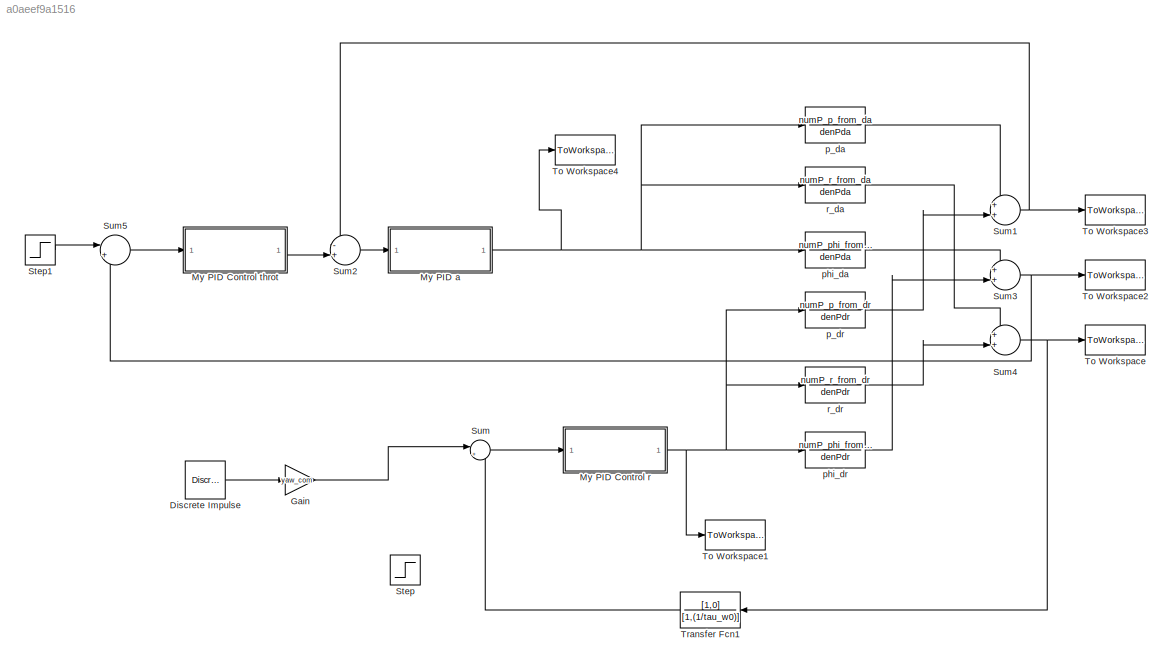
MODEL slx_a0aeef9a1516
KIND model
CONFIG AbsTol = auto
CONFIG FixedStep = auto
CONFIG MaxStep = auto
CONFIG MinStep = auto
CONFIG RelTol = 1e-3
CONFIG SampleTimeConstraint = Unconstrained
CONFIG Solver = ode45
CONFIG SolverMode = Auto
CONFIG SolverName = ode45
CONFIG StartTime = 0.0
CONFIG StopTime = 10.0
BLOCK [Reference] Discrete Impulse  REF=dspsrcs4/Discrete 
Impulse
  Ports = [0, 1]
  SourceBlock = dspsrcs4/Discrete \nImpulse
  SourceType = Discrete Impulse
BLOCK [Gain] Gain
  Gain = yaw_com
  OutDataTypeStr = Inherit: Inherit via internal rule
  ParamDataTypeStr = Inherit: Inherit via internal rule
  SaturateOnIntegerOverflow = off
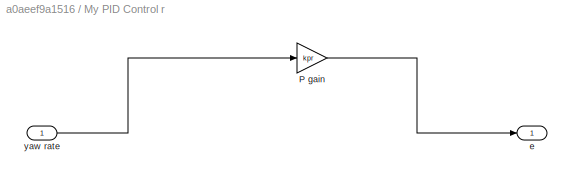
BLOCK [SubSystem] My PID Control r
  Ports = [1, 1]
  RequestExecContextInheritance = off
  TreatAsAtomicUnit = on
  Variant = off
BLOCK [Gain] My PID Control r/P gain
  Gain = kpr
  OutDataTypeStr = Inherit: Inherit via internal rule
  ParamDataTypeStr = Inherit: Inherit via internal rule
  SaturateOnIntegerOverflow = off
BLOCK [Outport] My PID Control r/e
  IconDisplay = Port number
BLOCK [Inport] My PID Control r/yaw rate
  IconDisplay = Port number
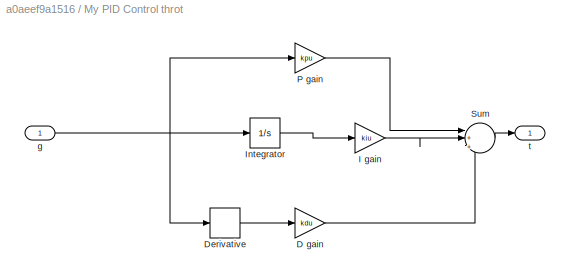
BLOCK [SubSystem] My PID Control throt
  Ports = [1, 1]
  RequestExecContextInheritance = off
  TreatAsAtomicUnit = on
  Variant = off
BLOCK [Gain] My PID Control throt/D gain
  Gain = kdu
  OutDataTypeStr = Inherit: Inherit via internal rule
  ParamDataTypeStr = Inherit: Inherit via internal rule
  SaturateOnIntegerOverflow = off
BLOCK [Derivative] My PID Control throt/Derivative
BLOCK [Gain] My PID Control throt/I gain
  Gain = kiu
  OutDataTypeStr = Inherit: Inherit via internal rule
  ParamDataTypeStr = Inherit: Inherit via internal rule
  SaturateOnIntegerOverflow = off
BLOCK [Integrator] My PID Control throt/Integrator
  Ports = [1, 1]
BLOCK [Gain] My PID Control throt/P gain
  Gain = kpu
  OutDataTypeStr = Inherit: Inherit via internal rule
  ParamDataTypeStr = Inherit: Inherit via internal rule
  SaturateOnIntegerOverflow = off
BLOCK [Sum] My PID Control throt/Sum
  IconShape = round
  InputSameDT = off
  Inputs = |+|+|+
  OutDataTypeStr = Inherit: Inherit via internal rule
  Ports = [3, 1]
  SaturateOnIntegerOverflow = off
BLOCK [Inport] My PID Control throt/g
  IconDisplay = Port number
BLOCK [Outport] My PID Control throt/t
  IconDisplay = Port number
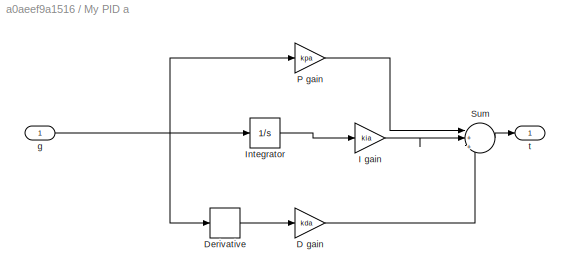
BLOCK [SubSystem] My PID a
  Ports = [1, 1]
  RequestExecContextInheritance = off
  TreatAsAtomicUnit = on
  Variant = off
BLOCK [Gain] My PID a/D gain
  Gain = kda
  OutDataTypeStr = Inherit: Inherit via internal rule
  ParamDataTypeStr = Inherit: Inherit via internal rule
  SaturateOnIntegerOverflow = off
BLOCK [Derivative] My PID a/Derivative
BLOCK [Gain] My PID a/I gain
  Gain = kia
  OutDataTypeStr = Inherit: Inherit via internal rule
  ParamDataTypeStr = Inherit: Inherit via internal rule
  SaturateOnIntegerOverflow = off
BLOCK [Integrator] My PID a/Integrator
  Ports = [1, 1]
BLOCK [Gain] My PID a/P gain
  Gain = kpa
  OutDataTypeStr = Inherit: Inherit via internal rule
  ParamDataTypeStr = Inherit: Inherit via internal rule
  SaturateOnIntegerOverflow = off
BLOCK [Sum] My PID a/Sum
  IconShape = round
  InputSameDT = off
  Inputs = |+|+|+
  OutDataTypeStr = Inherit: Inherit via internal rule
  Ports = [3, 1]
  SaturateOnIntegerOverflow = off
BLOCK [Inport] My PID a/g
  IconDisplay = Port number
BLOCK [Outport] My PID a/t
  IconDisplay = Port number
BLOCK [Step] Step
  After = 0
  SampleTime = 0
  Time = 0
BLOCK [Step] Step1
  After = phi_com
  SampleTime = 0
  Time = 0
BLOCK [Sum] Sum
  IconShape = round
  InputSameDT = off
  Inputs = |+-
  OutDataTypeStr = Inherit: Inherit via internal rule
  Ports = [2, 1]
  SaturateOnIntegerOverflow = off
BLOCK [Sum] Sum1
  IconShape = round
  InputSameDT = off
  Inputs = ++|
  OutDataTypeStr = Inherit: Inherit via internal rule
  Ports = [2, 1]
  SaturateOnIntegerOverflow = off
BLOCK [Sum] Sum2
  IconShape = round
  InputSameDT = off
  Inputs = -+|
  OutDataTypeStr = Inherit: Inherit via internal rule
  Ports = [2, 1]
  SaturateOnIntegerOverflow = off
BLOCK [Sum] Sum3
  IconShape = round
  InputSameDT = off
  Inputs = ++|
  OutDataTypeStr = Inherit: Inherit via internal rule
  Ports = [2, 1]
  SaturateOnIntegerOverflow = off
BLOCK [Sum] Sum4
  IconShape = round
  InputSameDT = off
  Inputs = ++|
  OutDataTypeStr = Inherit: Inherit via internal rule
  Ports = [2, 1]
  SaturateOnIntegerOverflow = off
BLOCK [Sum] Sum5
  IconShape = round
  InputSameDT = off
  Inputs = |+-
  OutDataTypeStr = Inherit: Inherit via internal rule
  Ports = [2, 1]
  SaturateOnIntegerOverflow = off
BLOCK [ToWorkspace] To Workspace
  MaxDataPoints = inf
  Ports = [1]
  SampleTime = -1
  SaveFormat = Timeseries
  VariableName = yaw_rate
BLOCK [ToWorkspace] To Workspace1
  MaxDataPoints = inf
  Ports = [1]
  SampleTime = -1
  SaveFormat = Timeseries
  VariableName = rudder
BLOCK [ToWorkspace] To Workspace2
  MaxDataPoints = inf
  Ports = [1]
  SampleTime = -1
  SaveFormat = Timeseries
  VariableName = phi
BLOCK [ToWorkspace] To Workspace3
  MaxDataPoints = inf
  Ports = [1]
  SampleTime = -1
  SaveFormat = Timeseries
  VariableName = roll_rate
BLOCK [ToWorkspace] To Workspace4
  MaxDataPoints = inf
  Ports = [1]
  SampleTime = -1
  SaveFormat = Timeseries
  VariableName = alieron
BLOCK [TransferFcn] Transfer Fcn1
  Denominator = [1,(1/tau_w0)]
  Numerator = [1,0]
BLOCK [TransferFcn] p_da
  Denominator = denPda
  Numerator = numP_p_from_da
BLOCK [TransferFcn] p_dr
  Denominator = denPdr
  Numerator = numP_p_from_dr
BLOCK [TransferFcn] phi_da
  Denominator = denPda
  Numerator = numP_phi_from_da
BLOCK [TransferFcn] phi_dr
  Denominator = denPdr
  Numerator = numP_phi_from_dr
BLOCK [TransferFcn] r_da
  Denominator = denPda
  Numerator = numP_r_from_da
BLOCK [TransferFcn] r_dr
  Denominator = denPdr
  Numerator = numP_r_from_dr
LINE Discrete Impulse:1 -> Gain:1
LINE Gain:1 -> Sum:1
LINE My PID Control r/P gain:1 -> My PID Control r/e:1
LINE My PID Control r/yaw rate:1 -> My PID Control r/P gain:1
NET My PID Control r:1 -> To Workspace1:1, p_dr:1, phi_dr:1, r_dr:1
LINE My PID Control throt/D gain:1 -> My PID Control throt/Sum:3
LINE My PID Control throt/Derivative:1 -> My PID Control throt/D gain:1
LINE My PID Control throt/I gain:1 -> My PID Control throt/Sum:2
LINE My PID Control throt/Integrator:1 -> My PID Control throt/I gain:1
LINE My PID Control throt/P gain:1 -> My PID Control throt/Sum:1
LINE My PID Control throt/Sum:1 -> My PID Control throt/t:1
NET My PID Control throt/g:1 -> My PID Control throt/Derivative:1, My PID Control throt/Integrator:1, My PID Control throt/P gain:1
LINE My PID Control throt:1 -> Sum2:2
LINE My PID a/D gain:1 -> My PID a/Sum:3
LINE My PID a/Derivative:1 -> My PID a/D gain:1
LINE My PID a/I gain:1 -> My PID a/Sum:2
LINE My PID a/Integrator:1 -> My PID a/I gain:1
LINE My PID a/P gain:1 -> My PID a/Sum:1
LINE My PID a/Sum:1 -> My PID a/t:1
NET My PID a/g:1 -> My PID a/Derivative:1, My PID a/Integrator:1, My PID a/P gain:1
NET My PID a:1 -> To Workspace4:1, p_da:1, phi_da:1, r_da:1
LINE Step1:1 -> Sum5:1
NET Sum1:1 -> Sum2:1, To Workspace3:1
LINE Sum2:1 -> My PID a:1
NET Sum3:1 -> Sum5:2, To Workspace2:1
NET Sum4:1 -> To Workspace:1, Transfer Fcn1:1
LINE Sum5:1 -> My PID Control throt:1
LINE Sum:1 -> My PID Control r:1
LINE Transfer Fcn1:1 -> Sum:2
LINE p_da:1 -> Sum1:1
LINE p_dr:1 -> Sum1:2
LINE phi_da:1 -> Sum3:1
LINE phi_dr:1 -> Sum3:2
LINE r_da:1 -> Sum4:1
LINE r_dr:1 -> Sum4:2
note: NET lines group one-source signal fan-out (src -> all destinations, sorted); 1:1 wires keep LINE
